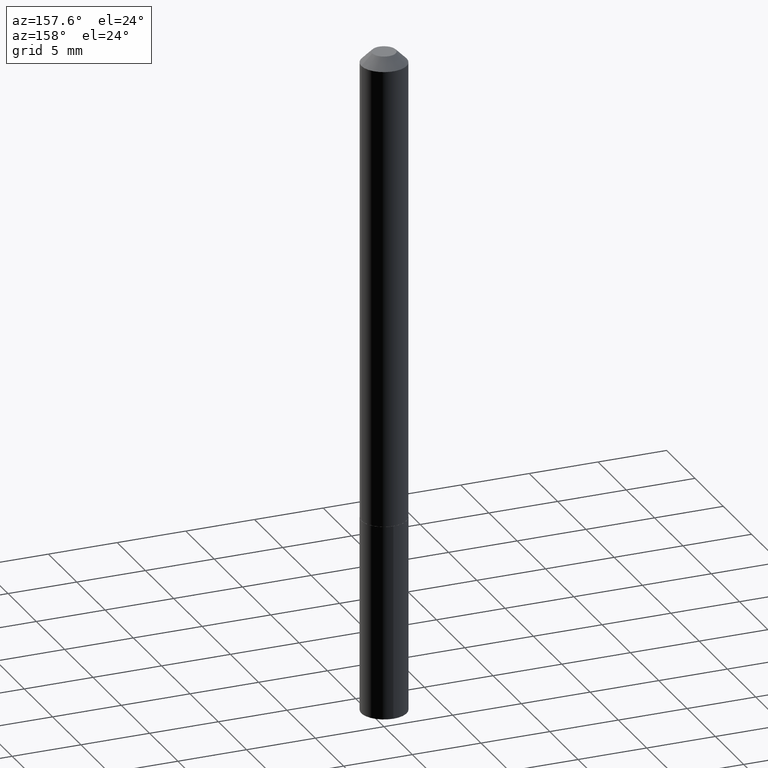
[diagram: clean part render]
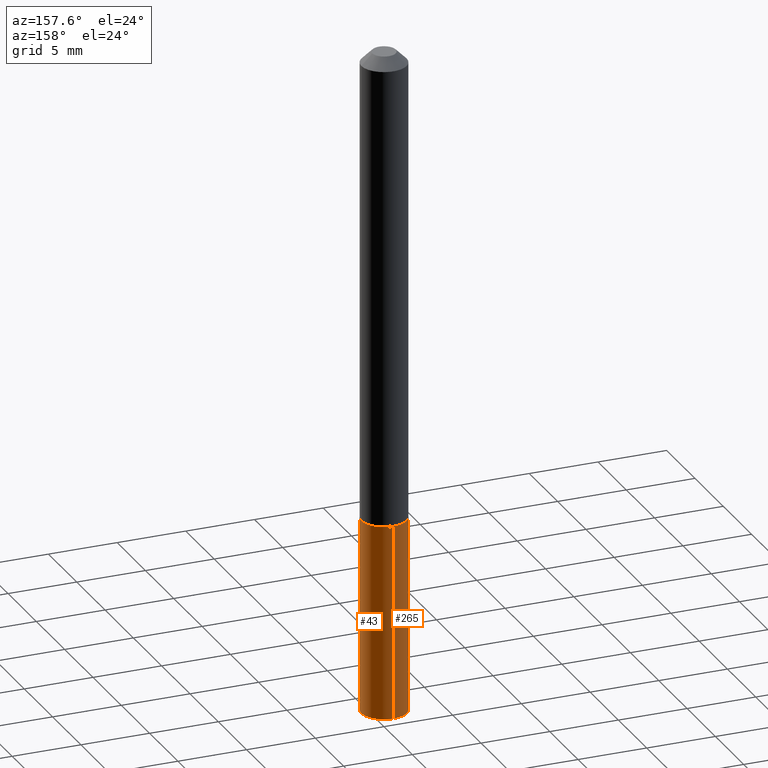
[diagram: same view with one multi-face feature highlighted, each face labeled with its STEP entity id]
A machine part, auxiliary view. The highlighted faces form ONE feature: a constant-radius fillet chain: 2 tangent blend faces with common blend radius 1.6497 mm. The faces share edges in the B-rep.
Their STEP definitions:
[1] entity #43 (Cylinder):
#3 = AXIS2_PLACEMENT_3D ( 'NONE', #189, #330, #116 ) ;
#15 = EDGE_CURVE ( 'NONE', #388, #138, #121, .T. ) ;
#18 = CARTESIAN_POINT ( 'NONE',  ( 3.302116528991790311E-29, -4.714547251839899498E-15, -1.350300000000000056 ) ) ;
#35 = DIRECTION ( 'NONE',  ( -2.445529134610573638E-29, 3.491394945104238914E-15, 1.000000000000000000 ) ) ;
#43 = ADVANCED_FACE ( 'NONE', ( #372 ), #253, .T. ) ;
#44 = DIRECTION ( 'NONE',  ( -2.445529134610573638E-29, 3.491394945104238914E-15, 1.000000000000000000 ) ) ;
#79 = DIRECTION ( 'NONE',  ( -6.982962677686266711E-15, -1.000000000000000000, 4.206078512185163024E-15 ) ) ;
#80 = LINE ( 'NONE', #305, #87 ) ;
#83 = VERTEX_POINT ( 'NONE', #375 ) ;
#84 = EDGE_CURVE ( 'NONE', #83, #138, #100, .T. ) ;
#87 = VECTOR ( 'NONE', #44, 39.37007874015748143 ) ;
#100 = LINE ( 'NONE', #193, #263 ) ;
#106 = ORIENTED_EDGE ( 'NONE', *, *, #84, .T. ) ;
#116 = DIRECTION ( 'NONE',  ( -6.982962677686266711E-15, -1.000000000000000000, 4.206078512185163024E-15 ) ) ;
#121 = CIRCLE ( 'NONE', #197, 0.06494999999999999385 ) ;
#138 = VERTEX_POINT ( 'NONE', #366 ) ;
#158 = CARTESIAN_POINT ( 'NONE',  ( -4.535434259156761574E-16, -0.06495000000000664131, -1.908621343662309844 ) ) ;
#168 = VERTEX_POINT ( 'NONE', #158 ) ;
#169 = AXIS2_PLACEMENT_3D ( 'NONE', #178, #290, #171 ) ;
#171 = DIRECTION ( 'NONE',  ( -6.982962677686266711E-15, -1.000000000000000000, 4.206078512185163024E-15 ) ) ;
#178 = CARTESIAN_POINT ( 'NONE',  ( 4.667507641392892342E-29, -6.663867568846296048E-15, -1.908621343662310288 ) ) ;
#189 = CARTESIAN_POINT ( 'NONE',  ( 3.302116528991790311E-29, -4.714547251839899498E-15, -1.350300000000000056 ) ) ;
#192 = EDGE_LOOP ( 'NONE', ( #298, #106, #357, #359 ) ) ;
#193 = CARTESIAN_POINT ( 'NONE',  ( 4.614975068762179620E-16, 0.06494999999999528928, -1.350300000000000278 ) ) ;
#197 = AXIS2_PLACEMENT_3D ( 'NONE', #18, #259, #79 ) ;
#227 = EDGE_CURVE ( 'NONE', #168, #388, #80, .T. ) ;
#253 = CYLINDRICAL_SURFACE ( 'NONE', #3, 0.06494999999999999385 ) ;
#259 = DIRECTION ( 'NONE',  ( -2.445529134610573638E-29, 3.491394945104239308E-15, 1.000000000000000000 ) ) ;
#263 = VECTOR ( 'NONE', #35, 39.37007874015748143 ) ;
#290 = DIRECTION ( 'NONE',  ( -2.445529134610573638E-29, 3.491394945104239308E-15, 1.000000000000000000 ) ) ;
#298 = ORIENTED_EDGE ( 'NONE', *, *, #346, .T. ) ;
#305 = CARTESIAN_POINT ( 'NONE',  ( -4.535434259156899625E-16, -0.06495000000000471230, -1.350299999999999834 ) ) ;
#317 = CARTESIAN_POINT ( 'NONE',  ( -4.535434259156899625E-16, -0.06495000000000471230, -1.350299999999999834 ) ) ;
#330 = DIRECTION ( 'NONE',  ( -2.445529134610573638E-29, 3.491394945104239308E-15, 1.000000000000000000 ) ) ;
#346 = EDGE_CURVE ( 'NONE', #168, #83, #382, .T. ) ;
#357 = ORIENTED_EDGE ( 'NONE', *, *, #15, .F. ) ;
#359 = ORIENTED_EDGE ( 'NONE', *, *, #227, .F. ) ;
#366 = CARTESIAN_POINT ( 'NONE',  ( 4.614975068762316684E-16, 0.06494999999999527540, -1.350300000000000278 ) ) ;
#372 = FACE_OUTER_BOUND ( 'NONE', #192, .T. ) ;
#375 = CARTESIAN_POINT ( 'NONE',  ( 4.614975068762314712E-16, 0.06494999999999330476, -1.908621343662310510 ) ) ;
#382 = CIRCLE ( 'NONE', #169, 0.06494999999999999385 ) ;
#388 = VERTEX_POINT ( 'NONE', #317 ) ;
[2] entity #265 (Cylinder):
#14 = ORIENTED_EDGE ( 'NONE', *, *, #283, .F. ) ;
#20 = CIRCLE ( 'NONE', #70, 0.06494999999999999385 ) ;
#34 = CARTESIAN_POINT ( 'NONE',  ( 3.302116528991790311E-29, -4.714547251839899498E-15, -1.350300000000000056 ) ) ;
#35 = DIRECTION ( 'NONE',  ( -2.445529134610573638E-29, 3.491394945104238914E-15, 1.000000000000000000 ) ) ;
#36 = EDGE_LOOP ( 'NONE', ( #269, #81, #389, #14 ) ) ;
#44 = DIRECTION ( 'NONE',  ( -2.445529134610573638E-29, 3.491394945104238914E-15, 1.000000000000000000 ) ) ;
#70 = AXIS2_PLACEMENT_3D ( 'NONE', #34, #271, #187 ) ;
#80 = LINE ( 'NONE', #305, #87 ) ;
#81 = ORIENTED_EDGE ( 'NONE', *, *, #314, .T. ) ;
#82 = AXIS2_PLACEMENT_3D ( 'NONE', #284, #200, #242 ) ;
#83 = VERTEX_POINT ( 'NONE', #375 ) ;
#84 = EDGE_CURVE ( 'NONE', #83, #138, #100, .T. ) ;
#87 = VECTOR ( 'NONE', #44, 39.37007874015748143 ) ;
#100 = LINE ( 'NONE', #193, #263 ) ;
#114 = CIRCLE ( 'NONE', #82, 0.06494999999999999385 ) ;
#122 = AXIS2_PLACEMENT_3D ( 'NONE', #213, #324, #266 ) ;
#138 = VERTEX_POINT ( 'NONE', #366 ) ;
#158 = CARTESIAN_POINT ( 'NONE',  ( -4.535434259156761574E-16, -0.06495000000000664131, -1.908621343662309844 ) ) ;
#168 = VERTEX_POINT ( 'NONE', #158 ) ;
#187 = DIRECTION ( 'NONE',  ( -6.982962677686266711E-15, -1.000000000000000000, 4.206078512185163024E-15 ) ) ;
#193 = CARTESIAN_POINT ( 'NONE',  ( 4.614975068762179620E-16, 0.06494999999999528928, -1.350300000000000278 ) ) ;
#200 = DIRECTION ( 'NONE',  ( -2.445529134610573638E-29, 3.491394945104239308E-15, 1.000000000000000000 ) ) ;
#213 = CARTESIAN_POINT ( 'NONE',  ( 3.302116528991790311E-29, -4.714547251839899498E-15, -1.350300000000000056 ) ) ;
#227 = EDGE_CURVE ( 'NONE', #168, #388, #80, .T. ) ;
#242 = DIRECTION ( 'NONE',  ( -6.982962677686266711E-15, -1.000000000000000000, 4.206078512185163024E-15 ) ) ;
#246 = CYLINDRICAL_SURFACE ( 'NONE', #122, 0.06494999999999999385 ) ;
#263 = VECTOR ( 'NONE', #35, 39.37007874015748143 ) ;
#265 = ADVANCED_FACE ( 'NONE', ( #364 ), #246, .T. ) ;
#266 = DIRECTION ( 'NONE',  ( -6.982962677686266711E-15, -1.000000000000000000, 4.206078512185163024E-15 ) ) ;
#269 = ORIENTED_EDGE ( 'NONE', *, *, #84, .F. ) ;
#271 = DIRECTION ( 'NONE',  ( -2.445529134610573638E-29, 3.491394945104239308E-15, 1.000000000000000000 ) ) ;
#283 = EDGE_CURVE ( 'NONE', #138, #388, #20, .T. ) ;
#284 = CARTESIAN_POINT ( 'NONE',  ( 4.667507641392892342E-29, -6.663867568846296048E-15, -1.908621343662310288 ) ) ;
#305 = CARTESIAN_POINT ( 'NONE',  ( -4.535434259156899625E-16, -0.06495000000000471230, -1.350299999999999834 ) ) ;
#314 = EDGE_CURVE ( 'NONE', #83, #168, #114, .T. ) ;
#317 = CARTESIAN_POINT ( 'NONE',  ( -4.535434259156899625E-16, -0.06495000000000471230, -1.350299999999999834 ) ) ;
#324 = DIRECTION ( 'NONE',  ( -2.445529134610573638E-29, 3.491394945104239308E-15, 1.000000000000000000 ) ) ;
#364 = FACE_OUTER_BOUND ( 'NONE', #36, .T. ) ;
#366 = CARTESIAN_POINT ( 'NONE',  ( 4.614975068762316684E-16, 0.06494999999999527540, -1.350300000000000278 ) ) ;
#375 = CARTESIAN_POINT ( 'NONE',  ( 4.614975068762314712E-16, 0.06494999999999330476, -1.908621343662310510 ) ) ;
#388 = VERTEX_POINT ( 'NONE', #317 ) ;
#389 = ORIENTED_EDGE ( 'NONE', *, *, #227, .T. ) ;